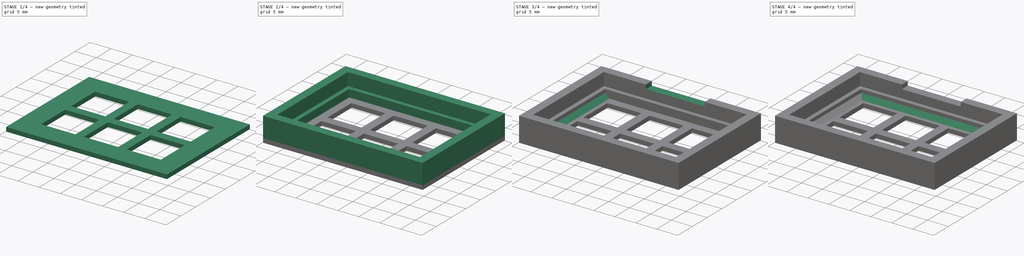
[diagram: build sequence overview — one tinted view per stage of 4, left to right]
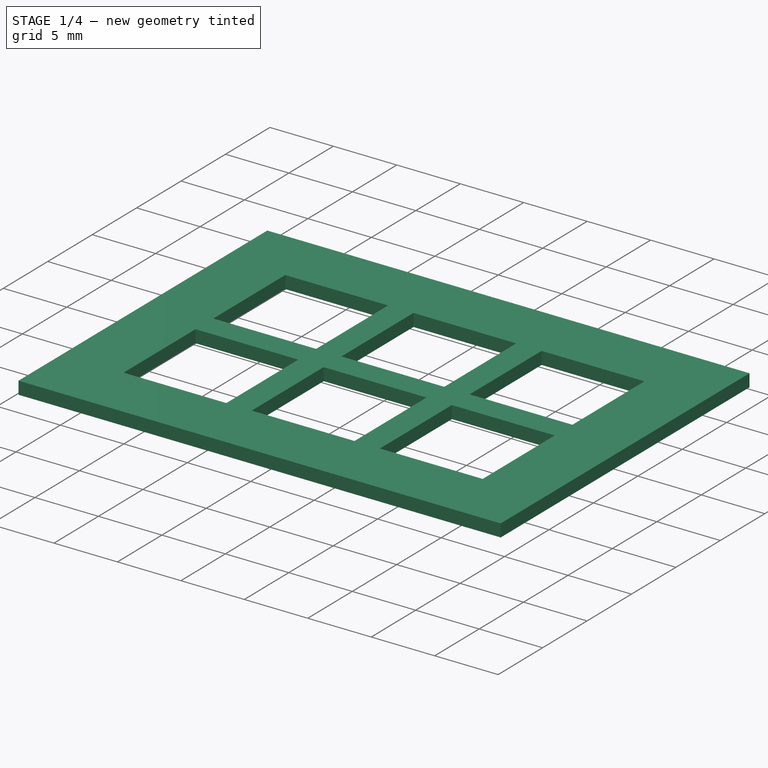
[diagram: stage 1 of 4 — iso view after this stage's code; geometry added in this stage tinted green]
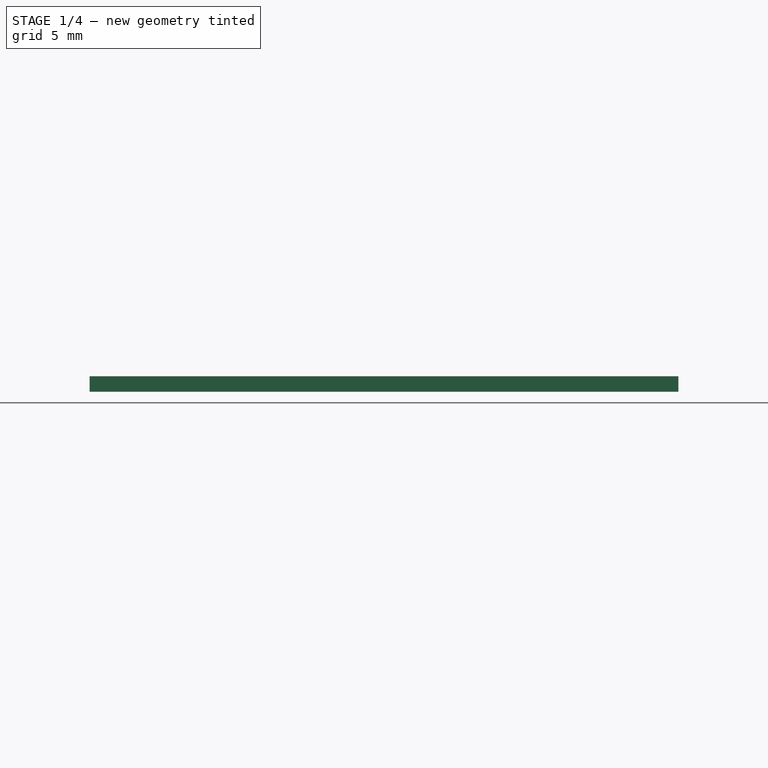
[diagram: stage 1 of 4 — front view after this stage's code; geometry added in this stage tinted green]
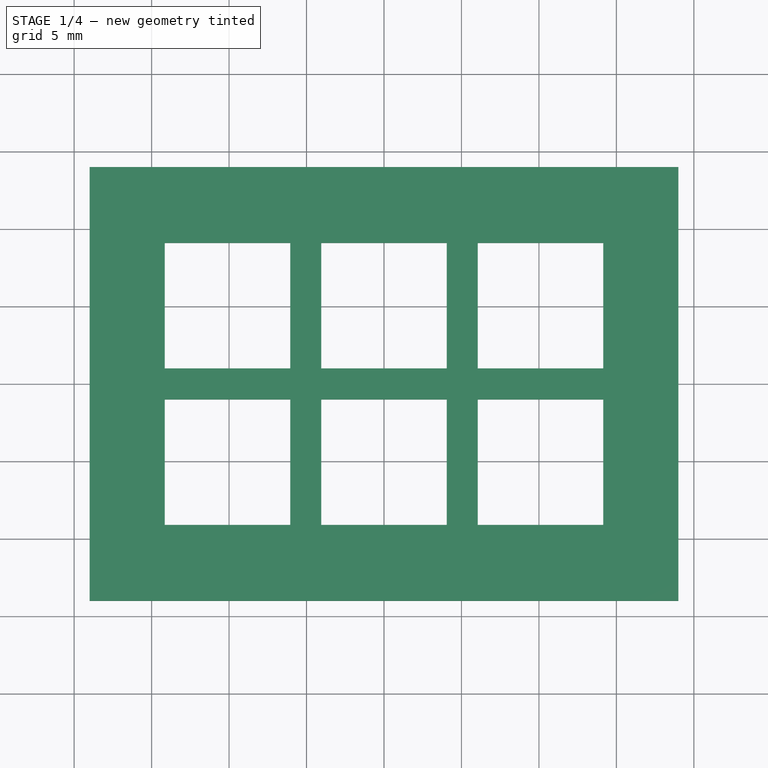
[diagram: stage 1 of 4 — top view after this stage's code; geometry added in this stage tinted green]
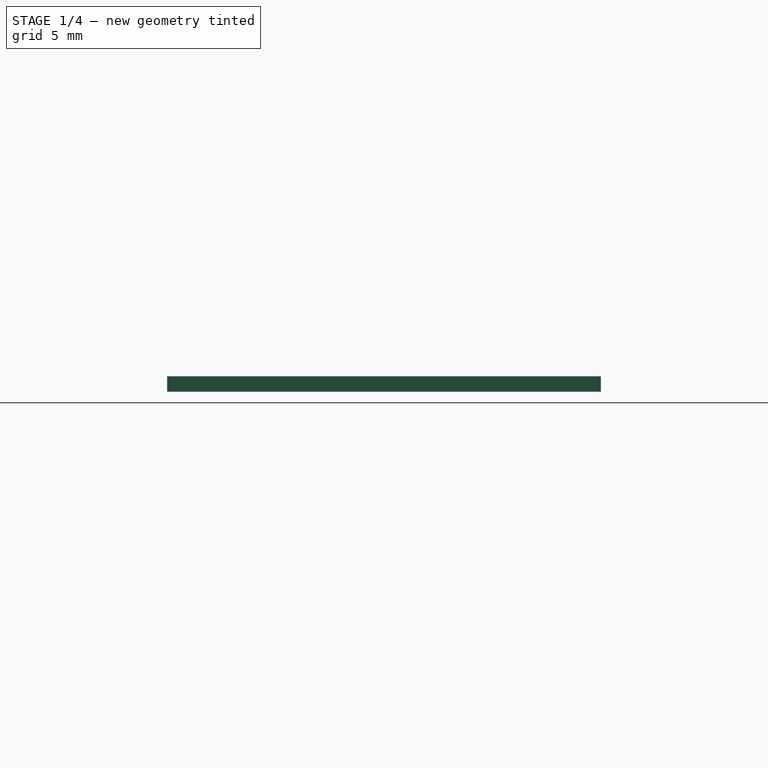
[diagram: stage 1 of 4 — right view after this stage's code; geometry added in this stage tinted green]
FCSTD DOCUMENT  (FreeCAD 0.14R3702 (Git))
Label: keyboard_frame
License: CC-BY 3.0
LicenseURL: http://creativecommons.org/licenses/by/3.0/
objects: Sketcher::SketchObject×5, PartDesign::Chamfer×4, PartDesign::Pad×3, PartDesign::Pocket×2
note: 19 computed .brp shape members not serialized (recipe doc carries the construction recipe); baked Part::Feature solids carry a one-line shape summary decoded from their .brp

FEATURE [Sketcher::SketchObject] Sketch
  sketch-geometry (4):
    g0: LineSegment StartX=-19 StartY=14 StartZ=0 EndX=19 EndY=14 EndZ=0
    g1: LineSegment StartX=19 StartY=14 StartZ=0 EndX=19 EndY=-14 EndZ=0
    g2: LineSegment StartX=19 StartY=-14 StartZ=0 EndX=-19 EndY=-14 EndZ=0
    g3: LineSegment StartX=-19 StartY=-14 StartZ=0 EndX=-19 EndY=14 EndZ=0
  constraints (12):
    c: Coincident(g0,g1)
    c: Coincident(g1,g2)
    c: Coincident(g2,g3)
    c: Coincident(g3,g0)
    c: Horizontal(g0)
    c: Horizontal(g2)
    c: Vertical(g1)
    c: Vertical(g3)
    c: DistanceY(g-1,g0) = 14
    c: DistanceX(g-2,g2) = -19
    c: Symmetric(g2,g0,g-1)
    c: Symmetric(g0,g0,g-2)
FEATURE [PartDesign::Pad] Pad
  Length = 1
  Length2 = 100
  Sketch = -> Sketch
  Type = 0
FEATURE [Sketcher::SketchObject] Sketch001
  Placement = pos=(0,0,1) rot=(0,0,1;0rad)
  Support = -> Pad [Face6]
  sketch-geometry (24):
    g0: LineSegment StartX=-4.05 StartY=9.1 StartZ=0 EndX=4.05 EndY=9.1 EndZ=0
    g1: LineSegment StartX=4.05 StartY=9.1 StartZ=0 EndX=4.05 EndY=1 EndZ=0
    g2: LineSegment StartX=4.05 StartY=1 StartZ=0 EndX=-4.05 EndY=1 EndZ=0
    g3: LineSegment StartX=-4.05 StartY=1 StartZ=0 EndX=-4.05 EndY=9.1 EndZ=0
    g4: LineSegment StartX=-4.05 StartY=-1 StartZ=0 EndX=4.05 EndY=-1 EndZ=0
    g5: LineSegment StartX=4.05 StartY=-1 StartZ=0 EndX=4.05 EndY=-9.1 EndZ=0
    g6: LineSegment StartX=4.05 StartY=-9.1 StartZ=0 EndX=-4.05 EndY=-9.1 EndZ=0
    g7: LineSegment StartX=-4.05 StartY=-9.1 StartZ=0 EndX=-4.05 EndY=-1 EndZ=0
    g8: LineSegment StartX=-6.05 StartY=9.1 StartZ=0 EndX=-14.15 EndY=9.1 EndZ=0
    g9: LineSegment StartX=-14.15 StartY=9.1 StartZ=0 EndX=-14.15 EndY=1 EndZ=0
    g10: LineSegment StartX=-14.15 StartY=1 StartZ=0 EndX=-6.05 EndY=1 EndZ=0
    g11: LineSegment StartX=-6.05 StartY=1 StartZ=0 EndX=-6.05 EndY=9.1 EndZ=0
    g12: LineSegment StartX=-14.15 StartY=-1 StartZ=0 EndX=-6.05 EndY=-1 EndZ=0
    g13: LineSegment StartX=-6.05 StartY=-1 StartZ=0 EndX=-6.05 EndY=-9.1 EndZ=0
    g14: LineSegment StartX=-6.05 StartY=-9.1 StartZ=0 EndX=-14.15 EndY=-9.1 EndZ=0
    g15: LineSegment StartX=-14.15 StartY=-9.1 StartZ=0 EndX=-14.15 EndY=-1 EndZ=0
    g16: LineSegment StartX=6.05 StartY=9.1 StartZ=0 EndX=14.15 EndY=9.1 EndZ=0
    g17: LineSegment StartX=14.15 StartY=9.1 StartZ=0 EndX=14.15 EndY=1 EndZ=0
    g18: LineSegment StartX=14.15 StartY=1 StartZ=0 EndX=6.05 EndY=1 EndZ=0
    g19: LineSegment StartX=6.05 StartY=1 StartZ=0 EndX=6.05 EndY=9.1 EndZ=0
    g20: LineSegment StartX=6.05 StartY=-1 StartZ=0 EndX=14.15 EndY=-1 EndZ=0
    g21: LineSegment StartX=14.15 StartY=-1 StartZ=0 EndX=14.15 EndY=-9.1 EndZ=0
    g22: LineSegment StartX=14.15 StartY=-9.1 StartZ=0 EndX=6.05 EndY=-9.1 EndZ=0
    g23: LineSegment StartX=6.05 StartY=-9.1 StartZ=0 EndX=6.05 EndY=-1 EndZ=0
  constraints (64):
    c: Coincident(g0,g1)
    c: Coincident(g1,g2)
    c: Coincident(g2,g3)
    c: Coincident(g3,g0)
    c: Horizontal(g0)
    c: Horizontal(g2)
    c: Vertical(g1)
    c: Vertical(g3)
    c: DistanceY(g-1,g1) = 1
    c: DistanceX(g-2,g2) = -4.05
    c: Distance(g3) = 8.1
    c: Symmetric(g2,g1,g-2)
    c: Coincident(g4,g5)
    c: Coincident(g5,g6)
    c: Coincident(g6,g7)
    c: Coincident(g7,g4)
    c: Horizontal(g4)
    c: Horizontal(g6)
    c: Vertical(g5)
    c: Vertical(g7)
    c: Symmetric(g2,g4,g-1)
    c: Symmetric(g4,g4,g-2)
    c: Symmetric(g5,g0,g-1)
    c: Coincident(g8,g9)
    c: Coincident(g9,g10)
    c: Coincident(g10,g11)
    c: Coincident(g11,g8)
    c: Horizontal(g8)
    c: Vertical(g9)
    c: Distance(g10,g2) = 2
    c: DistanceY(g-1,g10) = 1
    c: Equal(g9,g3)
    c: Equal(g8,g0)
    c: Coincident(g12,g13)
    c: Coincident(g13,g14)
    c: Coincident(g14,g15)
    c: Coincident(g15,g12)
    c: Horizontal(g12)
    c: Horizontal(g14)
    c: Vertical(g13)
    c: Vertical(g15)
    c: Symmetric(g12,g9,g-1)
    c: Symmetric(g12,g10,g-1)
    c: Symmetric(g13,g8,g-1)
    c: Coincident(g16,g17)
    c: Coincident(g17,g18)
    c: Coincident(g18,g19)
    c: Coincident(g19,g16)
    c: Horizontal(g16)
    c: Vertical(g17)
    c: Symmetric(g16,g8,g-2)
    c: Symmetric(g18,g10,g-2)
    c: Symmetric(g17,g9,g-2)
    c: Coincident(g20,g21)
    c: Coincident(g21,g22)
    c: Coincident(g22,g23)
    c: Coincident(g23,g20)
    c: Horizontal(g20)
    c: Horizontal(g22)
    c: Vertical(g21)
    c: Vertical(g23)
    c: Symmetric(g20,g17,g-1)
    c: Symmetric(g20,g18,g-1)
    c: Symmetric(g22,g16,g-1)
FEATURE [PartDesign::Pocket] Pocket
  Length = 5
  Sketch = -> Sketch001
  Type = 0
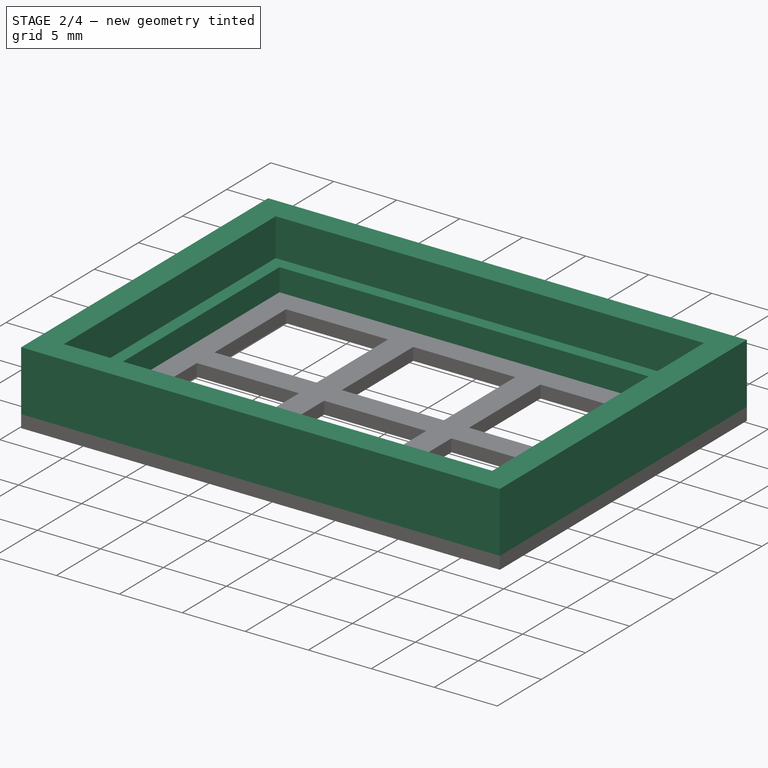
[diagram: stage 2 of 4 — iso view after this stage's code; geometry added in this stage tinted green]
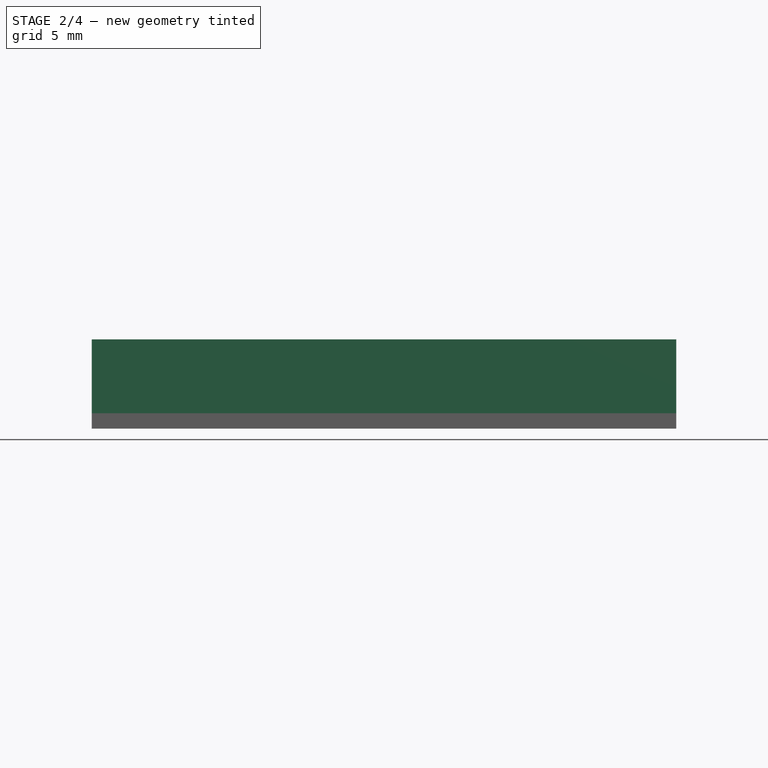
[diagram: stage 2 of 4 — front view after this stage's code; geometry added in this stage tinted green]
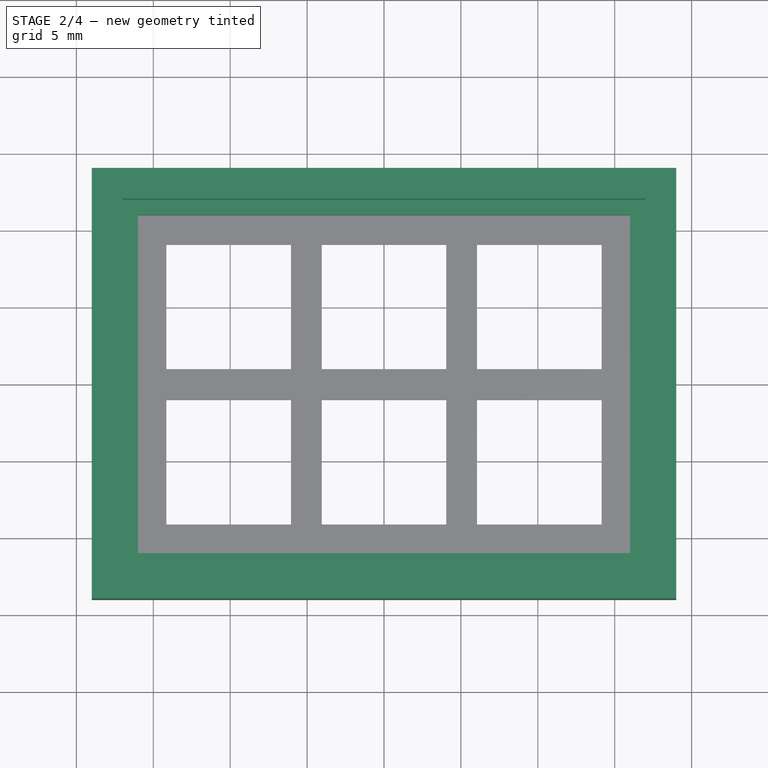
[diagram: stage 2 of 4 — top view after this stage's code; geometry added in this stage tinted green]
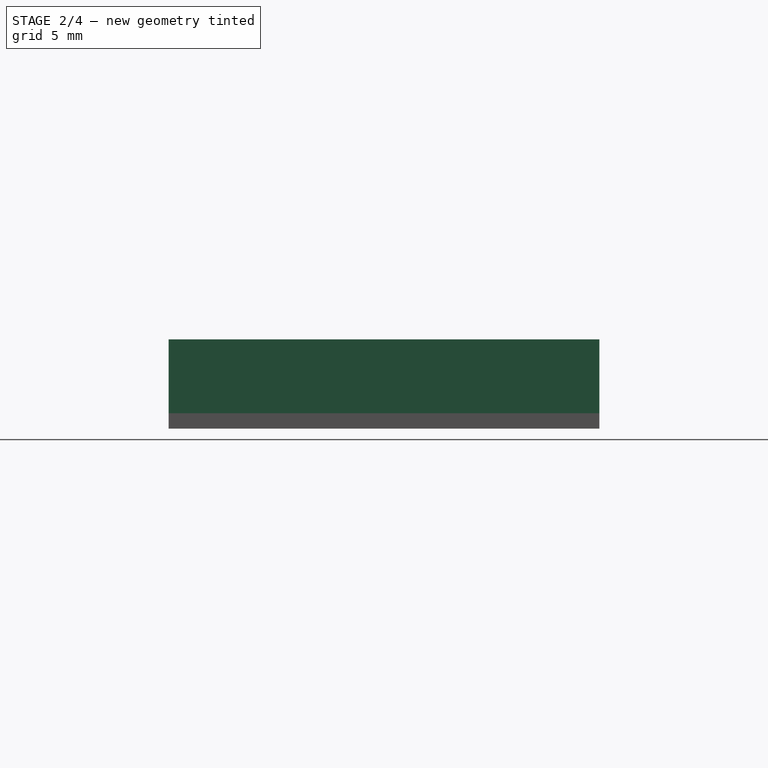
[diagram: stage 2 of 4 — right view after this stage's code; geometry added in this stage tinted green]
FEATURE [Sketcher::SketchObject] Sketch002
  Placement = pos=(0,0,1) rot=(0,0,1;0rad)
  Support = -> Pocket [Face5]
  sketch-geometry (8):
    g0: LineSegment StartX=-19 StartY=14 StartZ=0 EndX=19 EndY=14 EndZ=0
    g1: LineSegment StartX=-19 StartY=14 StartZ=0 EndX=-19 EndY=-14 EndZ=0
    g2: LineSegment StartX=-19 StartY=-14 StartZ=0 EndX=19 EndY=-14 EndZ=0
    g3: LineSegment StartX=19 StartY=-14 StartZ=0 EndX=19 EndY=14 EndZ=0
    g4: LineSegment StartX=-16 StartY=11 StartZ=0 EndX=16 EndY=11 EndZ=0
    g5: LineSegment StartX=16 StartY=11 StartZ=0 EndX=16 EndY=-11 EndZ=0
    g6: LineSegment StartX=16 StartY=-11 StartZ=0 EndX=-16 EndY=-11 EndZ=0
    g7: LineSegment StartX=-16 StartY=-11 StartZ=0 EndX=-16 EndY=11 EndZ=0
  constraints (21):
    c: Coincident(g1,g0)
    c: Coincident(g2,g1)
    c: Coincident(g3,g2)
    c: Coincident(g0,g3)
    c: Coincident(g4,g5)
    c: Coincident(g5,g6)
    c: Coincident(g6,g7)
    c: Coincident(g7,g4)
    c: Horizontal(g4)
    c: Horizontal(g6)
    c: Vertical(g5)
    c: Vertical(g7)
    c: DistanceX(g6,g1) = -3
    c: DistanceY(g1,g6) = 3
    c: Symmetric(g1,g0,g-1)
    c: Symmetric(g0,g0,g-2)
    c: Symmetric(g4,g4,g-2)
    c: Symmetric(g4,g6,g-1)
    c: DistanceX(g-2,g1) = -19
    c: DistanceY(g-1,g1) = -14
    c: Symmetric(g2,g1,g-2)
FEATURE [PartDesign::Pad] Pad001
  Length = 1.8
  Length2 = 100
  Sketch = -> Sketch002
  Type = 0
FEATURE [Sketcher::SketchObject] Sketch003
  Placement = pos=(0,0,2.8) rot=(0,0,1;0rad)
  Support = -> Pad001 [Face35]
  sketch-geometry (8):
    g0: LineSegment StartX=19 StartY=-14 StartZ=0 EndX=-19 EndY=-14 EndZ=0
    g1: LineSegment StartX=-19 StartY=-14 StartZ=0 EndX=-19 EndY=14 EndZ=0
    g2: LineSegment StartX=-19 StartY=14 StartZ=0 EndX=19 EndY=14 EndZ=0
    g3: LineSegment StartX=19 StartY=14 StartZ=0 EndX=19 EndY=-14 EndZ=0
    g4: LineSegment StartX=-17 StartY=12 StartZ=0 EndX=17 EndY=12 EndZ=0
    g5: LineSegment StartX=17 StartY=12 StartZ=0 EndX=17 EndY=-12 EndZ=0
    g6: LineSegment StartX=17 StartY=-12 StartZ=0 EndX=-17 EndY=-12 EndZ=0
    g7: LineSegment StartX=-17 StartY=-12 StartZ=0 EndX=-17 EndY=12 EndZ=0
  constraints (24):
    c: Coincident(g0,g1)
    c: Coincident(g1,g2)
    c: Coincident(g2,g3)
    c: Coincident(g3,g0)
    c: Horizontal(g0)
    c: Horizontal(g2)
    c: Vertical(g1)
    c: Vertical(g3)
    c: DistanceX(g-2,g0) = 19
    c: Symmetric(g0,g0,g-2)
    c: Symmetric(g0,g1,g-1)
    c: DistanceY(g-1,g0) = -14
    c: Coincident(g4,g5)
    c: Coincident(g5,g6)
    c: Coincident(g6,g7)
    c: Coincident(g7,g4)
    c: Horizontal(g4)
    c: Horizontal(g6)
    c: Vertical(g5)
    c: Vertical(g7)
    c: DistanceX(g5,g0) = 2
    c: DistanceY(g5,g0) = -2
    c: Symmetric(g6,g4,g-1)
    c: Symmetric(g4,g4,g-2)
FEATURE [PartDesign::Pad] Pad002
  Length = 3
  Length2 = 100
  Sketch = -> Sketch003
  Type = 0
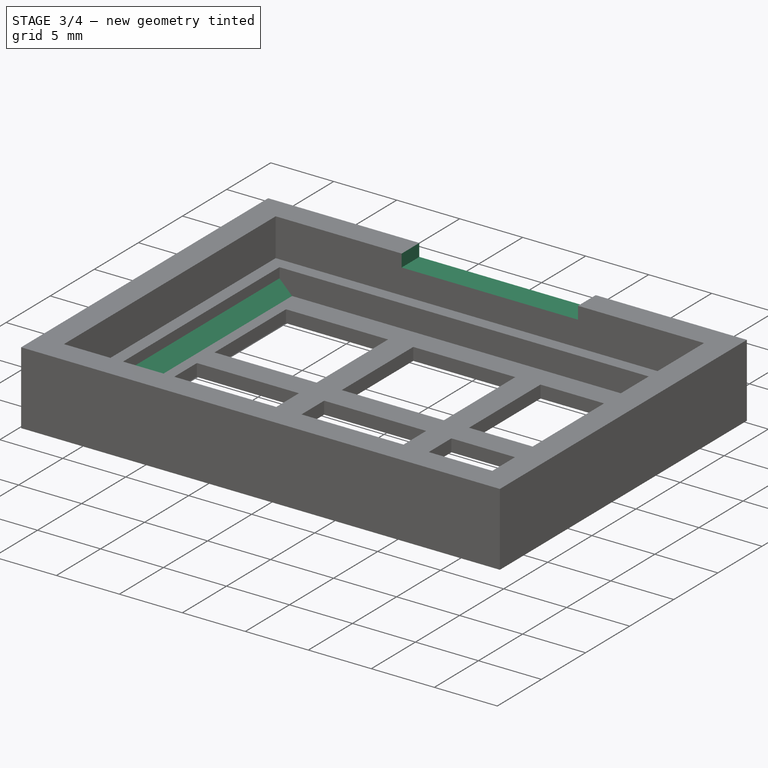
[diagram: stage 3 of 4 — iso view after this stage's code; geometry added in this stage tinted green]
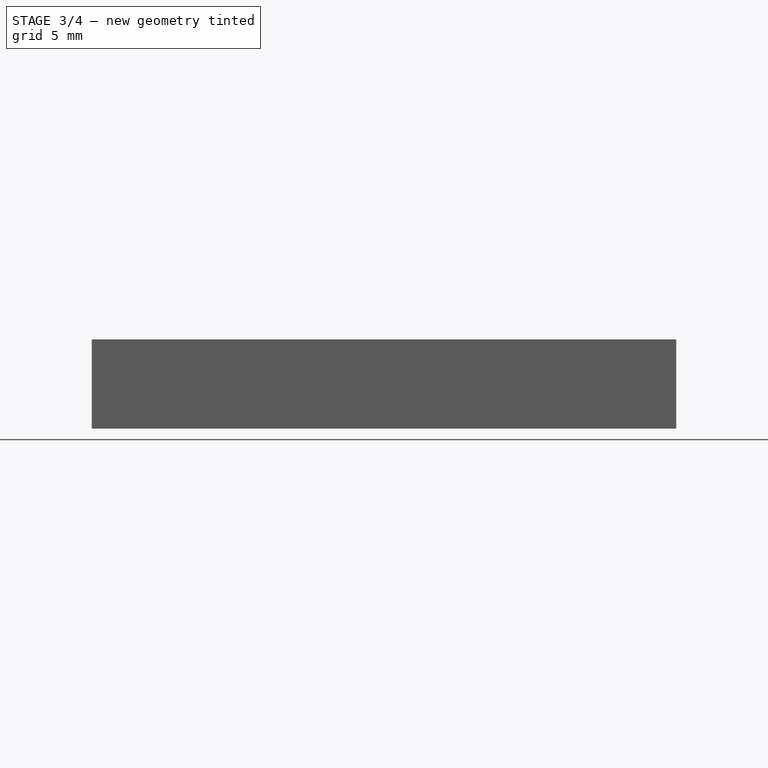
[diagram: stage 3 of 4 — front view after this stage's code; geometry added in this stage tinted green]
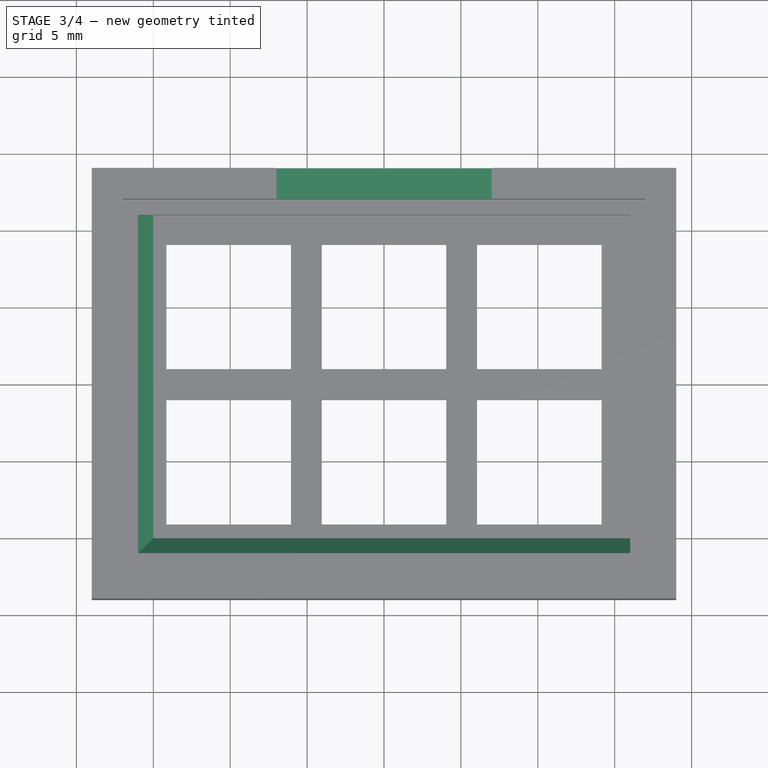
[diagram: stage 3 of 4 — top view after this stage's code; geometry added in this stage tinted green]
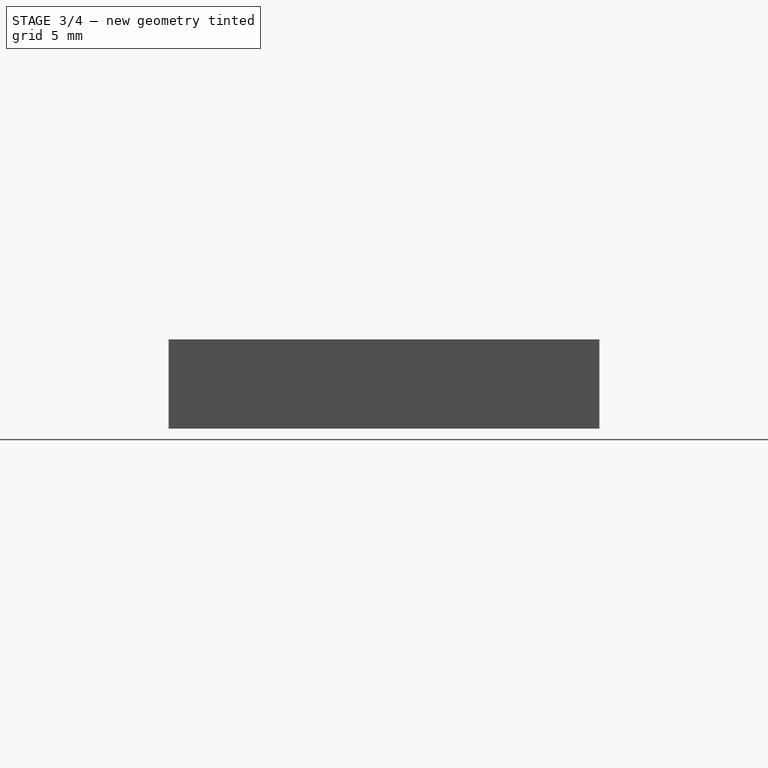
[diagram: stage 3 of 4 — right view after this stage's code; geometry added in this stage tinted green]
FEATURE [Sketcher::SketchObject] Sketch004
  Placement = pos=(0,0,5.8) rot=(0,0,1;0rad)
  Support = -> Pad002 [Face43]
  sketch-geometry (4):
    g0: LineSegment StartX=-7 StartY=14 StartZ=0 EndX=7 EndY=14 EndZ=0
    g1: LineSegment StartX=7 StartY=14 StartZ=0 EndX=7 EndY=12 EndZ=0
    g2: LineSegment StartX=7 StartY=12 StartZ=0 EndX=-7 EndY=12 EndZ=0
    g3: LineSegment StartX=-7 StartY=12 StartZ=0 EndX=-7 EndY=14 EndZ=0
  constraints (12):
    c: Coincident(g0,g1)
    c: Coincident(g1,g2)
    c: Coincident(g2,g3)
    c: Coincident(g3,g0)
    c: Horizontal(g0)
    c: Horizontal(g2)
    c: Vertical(g1)
    c: Vertical(g3)
    c: DistanceX(g-2,g2) = -7
    c: Distance(g2,g0) = 2
    c: Symmetric(g2,g1,g-2)
    c: DistanceY(g-1,g0) = 14
FEATURE [PartDesign::Pocket] Pocket001
  Length = 1
  Sketch = -> Sketch004
  Type = 0
FEATURE [PartDesign::Chamfer] Chamfer
  Base = -> Pocket001 [Edge96]
  Size = 1
FEATURE [PartDesign::Chamfer] Chamfer001
  Base = -> Chamfer [Edge4]
  Size = 1
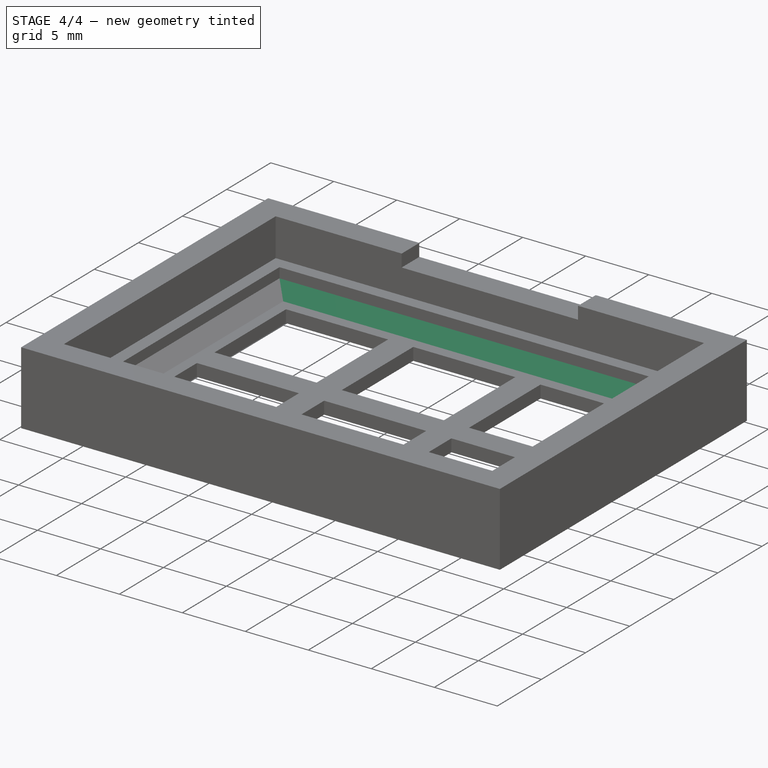
[diagram: stage 4 of 4 — iso view after this stage's code; geometry added in this stage tinted green]
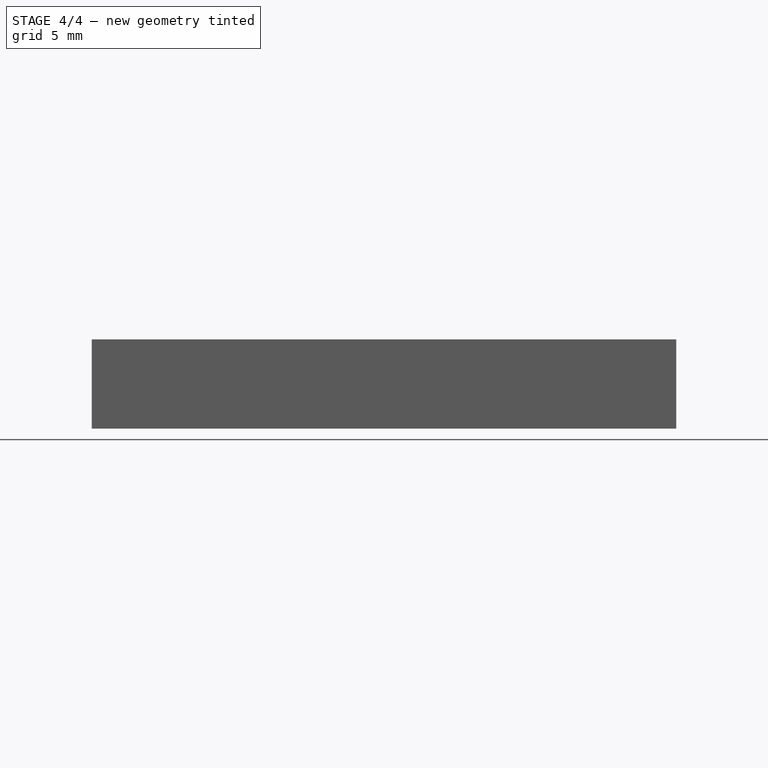
[diagram: stage 4 of 4 — front view after this stage's code; geometry added in this stage tinted green]
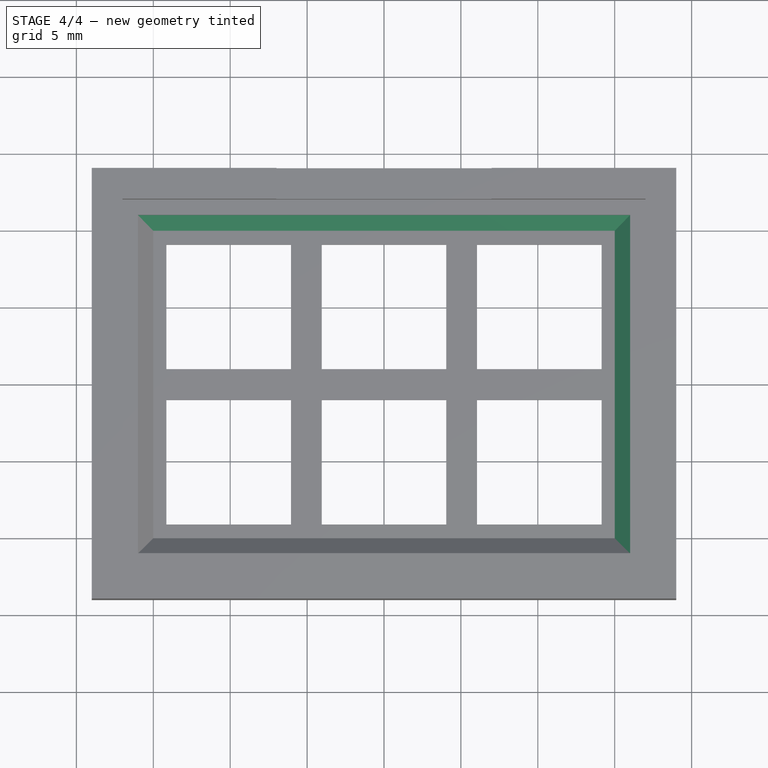
[diagram: stage 4 of 4 — top view after this stage's code; geometry added in this stage tinted green]
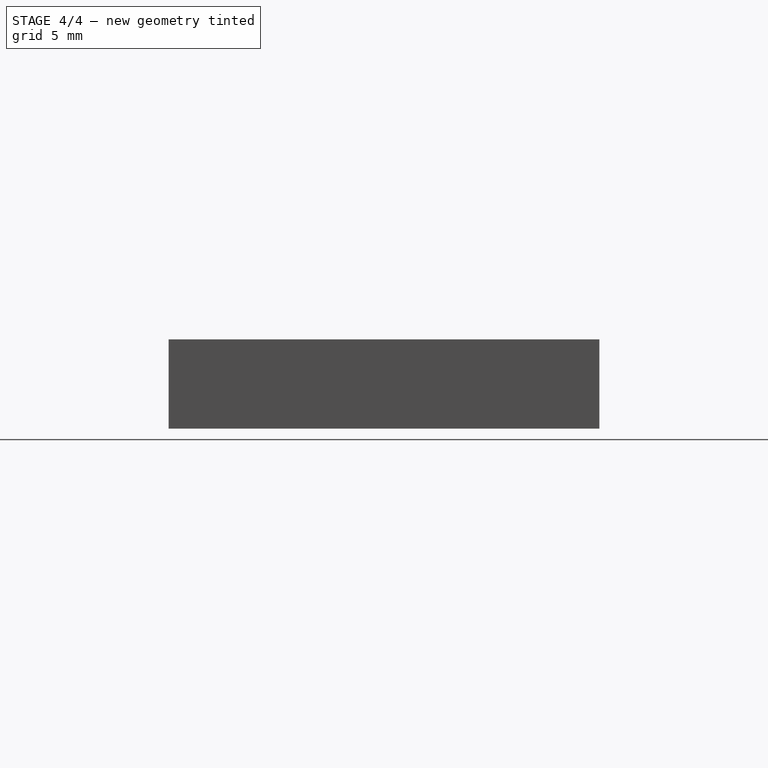
[diagram: stage 4 of 4 — right view after this stage's code; geometry added in this stage tinted green]
FEATURE [PartDesign::Chamfer] Chamfer002
  Base = -> Chamfer001 [Edge4]
  Size = 1
FEATURE [PartDesign::Chamfer] Chamfer003
  Base = -> Chamfer002 [Edge4]
  Size = 1
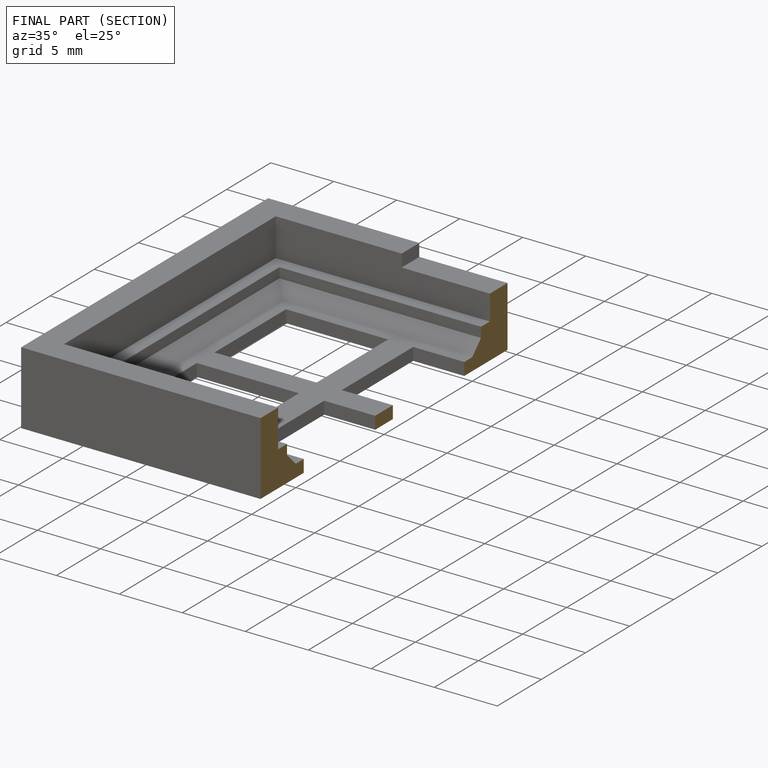
[diagram: finished part — half-section view (interior)]
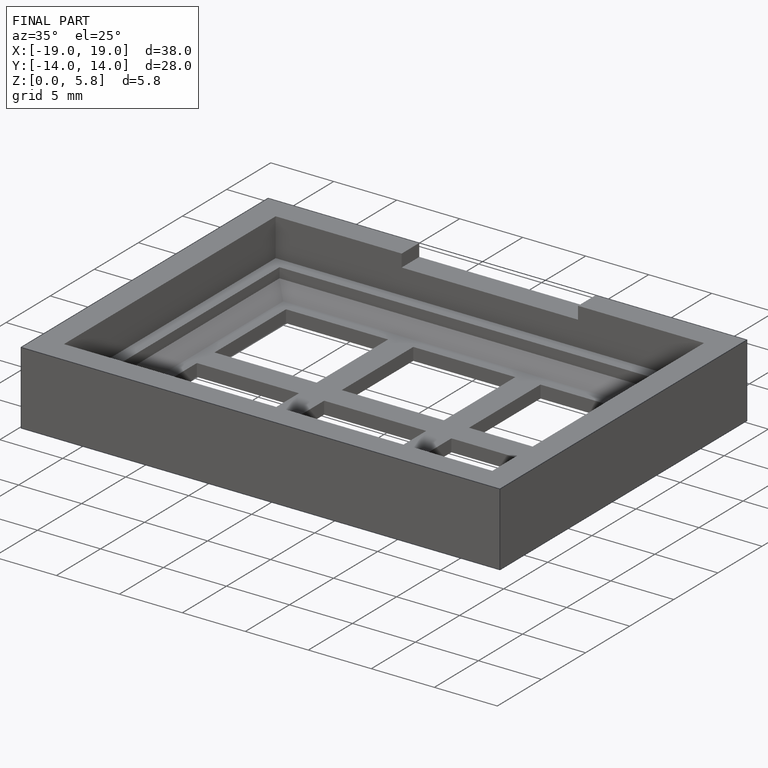
[diagram: finished part — iso view with bounding-box wireframe]
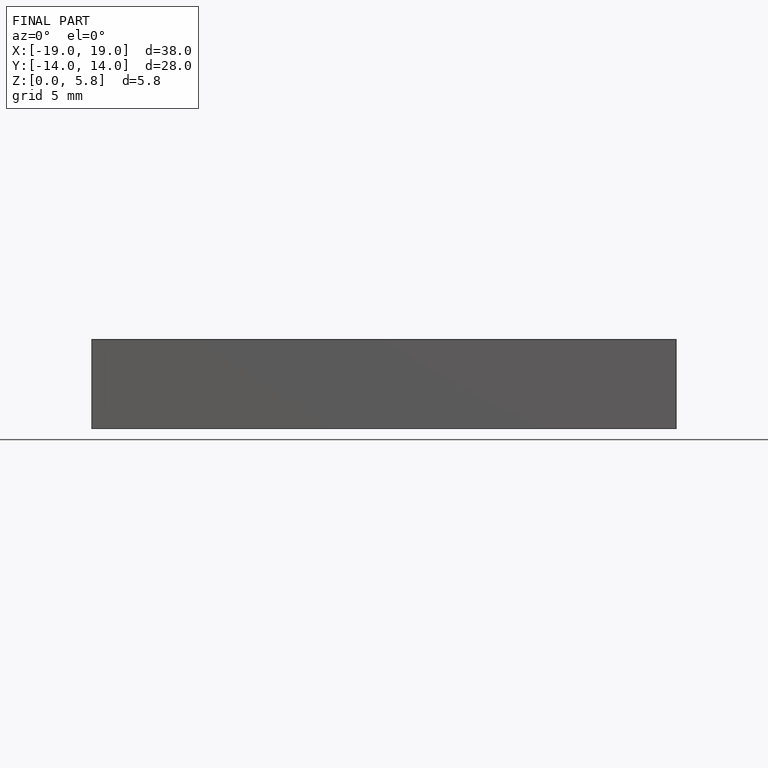
[diagram: finished part — front view with bounding-box wireframe]
